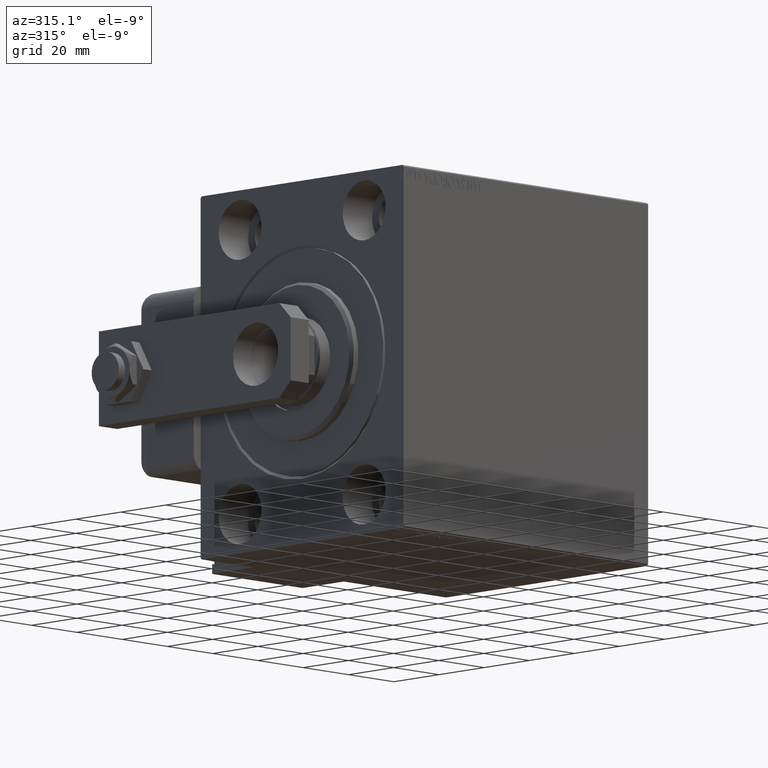
[diagram: clean part render]
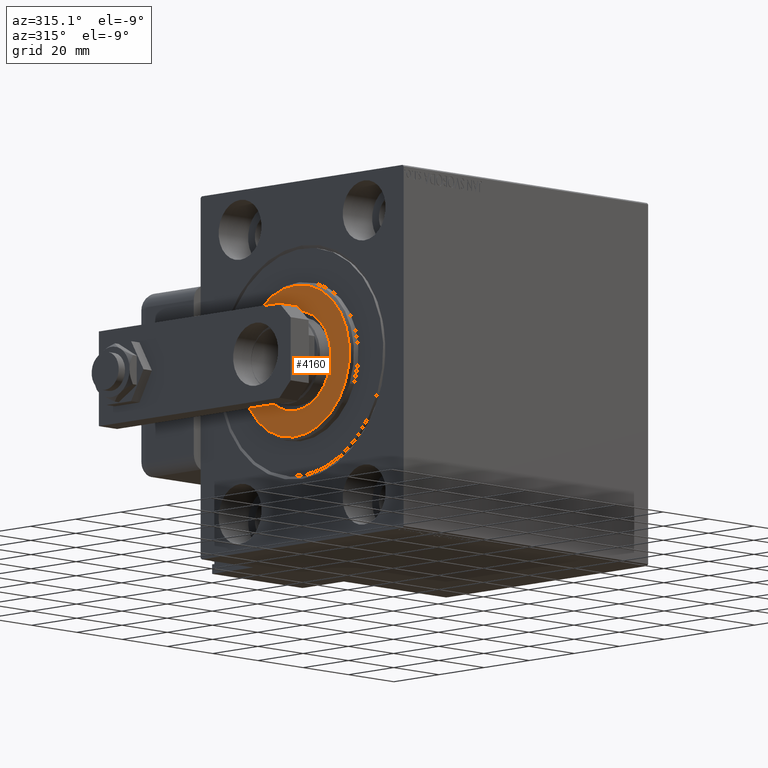
[diagram: same view with one face highlighted and labeled with its STEP entity id]
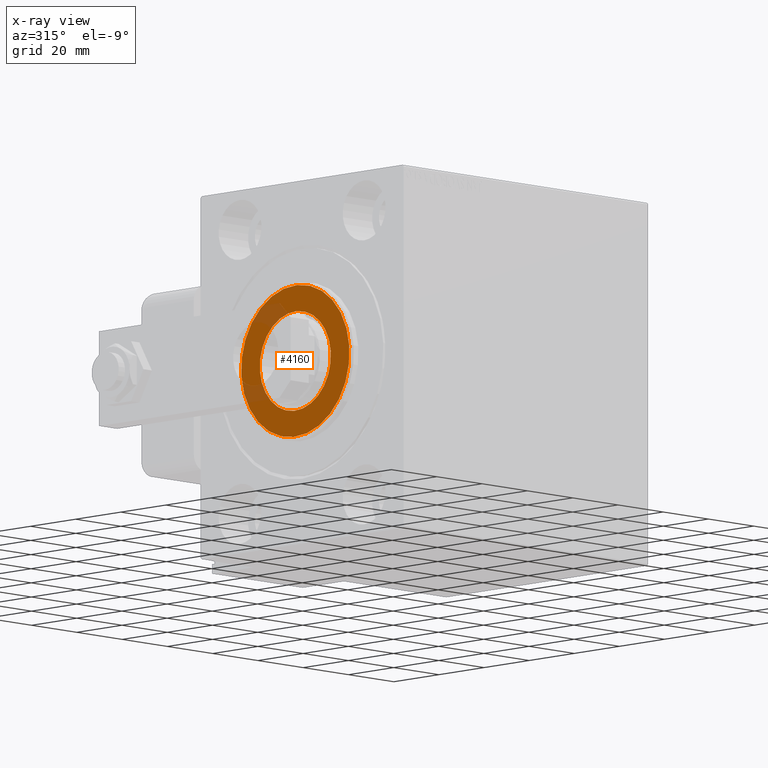
[diagram: x-ray of the same camera — body ghosted, the highlighted face saturated]
A machine part, auxiliary view. The second image highlights one B-rep face of the part: STEP entity #4160.
The next image is the same camera in x-ray: the body ghosted, the highlighted face saturated — about 12% of this face is hidden behind the body in this view.
In plain terms, the highlighted planar face has unit normal (-1, 0, 0).
Its self-contained STEP definition (entity closure, byte-faithful):
#404 = AXIS2_PLACEMENT_3D ( 'NONE', #44366, #31113, #21461 ) ;
#2159 = AXIS2_PLACEMENT_3D ( 'NONE', #22131, #49253, #26048 ) ;
#2896 = CARTESIAN_POINT ( 'NONE',  ( 3.000000000000000000, 0.000000000000000000, 0.000000000000000000 ) ) ;
#3203 = DIRECTION ( 'NONE',  ( -1.000000000000000000, 0.000000000000000000, -0.000000000000000000 ) ) ;
#4122 = DIRECTION ( 'NONE',  ( -1.000000000000000000, 0.000000000000000000, -0.000000000000000000 ) ) ;
#4160 = ADVANCED_FACE ( 'NONE', ( #30051, #7168 ), #43904, .T. ) ;
#6112 = ORIENTED_EDGE ( 'NONE', *, *, #35977, .T. ) ;
#7168 = FACE_BOUND ( 'NONE', #57924, .T. ) ;
#7465 = DIRECTION ( 'NONE',  ( 0.000000000000000000, 0.000000000000000000, -1.000000000000000000 ) ) ;
#7879 = CARTESIAN_POINT ( 'NONE',  ( 3.000000000000000000, 0.000000000000000000, 24.00000000000000711 ) ) ;
#8456 = CIRCLE ( 'NONE', #32537, 15.75000000000000000 ) ;
#10034 = CARTESIAN_POINT ( 'NONE',  ( 3.000000000000000000, 3.000384657911015469E-15, -24.00000000000000711 ) ) ;
#11971 = CIRCLE ( 'NONE', #404, 24.00000000000000711 ) ;
#11972 = CARTESIAN_POINT ( 'NONE',  ( 3.000000000000000000, 0.000000000000000000, 0.000000000000000000 ) ) ;
#13869 = EDGE_CURVE ( 'NONE', #47023, #30300, #17565, .T. ) ;
#13958 = AXIS2_PLACEMENT_3D ( 'NONE', #2896, #3203, #31219 ) ;
#14461 = EDGE_LOOP ( 'NONE', ( #36981, #58084 ) ) ;
#17565 = CIRCLE ( 'NONE', #2159, 24.00000000000000711 ) ;
#21461 = DIRECTION ( 'NONE',  ( 0.000000000000000000, 0.000000000000000000, -1.000000000000000000 ) ) ;
#22131 = CARTESIAN_POINT ( 'NONE',  ( 3.000000000000000000, 0.000000000000000000, 0.000000000000000000 ) ) ;
#23432 = VERTEX_POINT ( 'NONE', #32263 ) ;
#26048 = DIRECTION ( 'NONE',  ( 0.000000000000000000, 0.000000000000000000, -1.000000000000000000 ) ) ;
#30051 = FACE_OUTER_BOUND ( 'NONE', #14461, .T. ) ;
#30300 = VERTEX_POINT ( 'NONE', #10034 ) ;
#31113 = DIRECTION ( 'NONE',  ( 1.000000000000000000, -0.000000000000000000, 0.000000000000000000 ) ) ;
#31219 = DIRECTION ( 'NONE',  ( 0.000000000000000000, 0.000000000000000000, -1.000000000000000000 ) ) ;
#32263 = CARTESIAN_POINT ( 'NONE',  ( 3.000000000000000000, 1.928818708657080950E-15, -15.75000000000000000 ) ) ;
#32537 = AXIS2_PLACEMENT_3D ( 'NONE', #35154, #4122, #49913 ) ;
#35154 = CARTESIAN_POINT ( 'NONE',  ( 3.000000000000000000, 0.000000000000000000, 0.000000000000000000 ) ) ;
#35195 = EDGE_CURVE ( 'NONE', #30300, #47023, #11971, .T. ) ;
#35977 = EDGE_CURVE ( 'NONE', #39480, #23432, #59161, .T. ) ;
#36981 = ORIENTED_EDGE ( 'NONE', *, *, #13869, .T. ) ;
#39480 = VERTEX_POINT ( 'NONE', #47000 ) ;
#43904 = PLANE ( 'NONE',  #51826 ) ;
#44366 = CARTESIAN_POINT ( 'NONE',  ( 3.000000000000000000, 0.000000000000000000, 0.000000000000000000 ) ) ;
#47000 = CARTESIAN_POINT ( 'NONE',  ( 3.000000000000000000, 0.000000000000000000, 15.75000000000000000 ) ) ;
#47023 = VERTEX_POINT ( 'NONE', #7879 ) ;
#47678 = EDGE_CURVE ( 'NONE', #23432, #39480, #8456, .T. ) ;
#48731 = DIRECTION ( 'NONE',  ( 1.000000000000000000, -0.000000000000000000, 0.000000000000000000 ) ) ;
#49253 = DIRECTION ( 'NONE',  ( 1.000000000000000000, -0.000000000000000000, 0.000000000000000000 ) ) ;
#49913 = DIRECTION ( 'NONE',  ( 0.000000000000000000, 0.000000000000000000, -1.000000000000000000 ) ) ;
#51826 = AXIS2_PLACEMENT_3D ( 'NONE', #11972, #48731, #7465 ) ;
#54460 = ORIENTED_EDGE ( 'NONE', *, *, #47678, .T. ) ;
#57924 = EDGE_LOOP ( 'NONE', ( #6112, #54460 ) ) ;
#58084 = ORIENTED_EDGE ( 'NONE', *, *, #35195, .T. ) ;
#59161 = CIRCLE ( 'NONE', #13958, 15.75000000000000000 ) ;